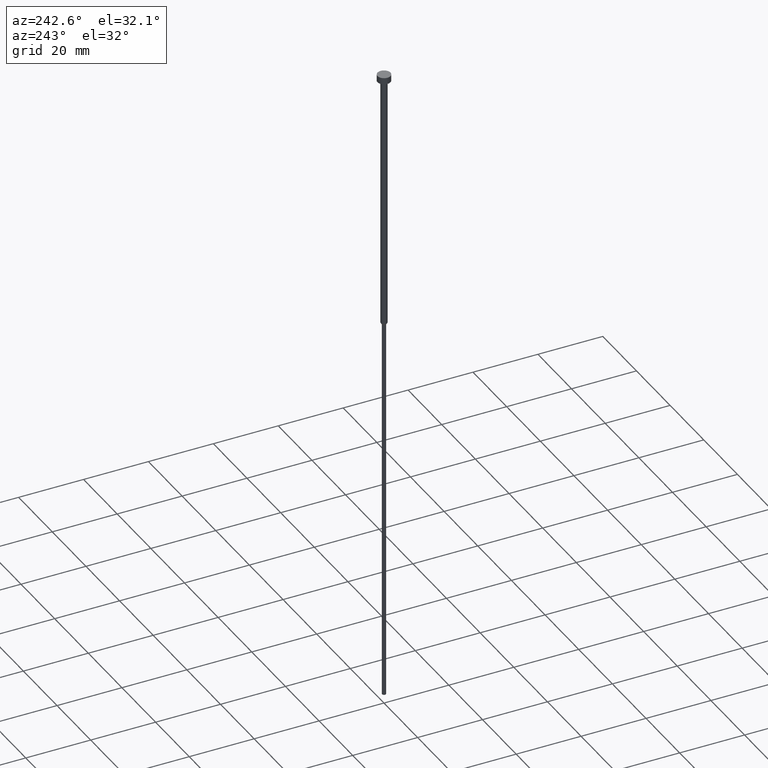
[diagram: clean part render]
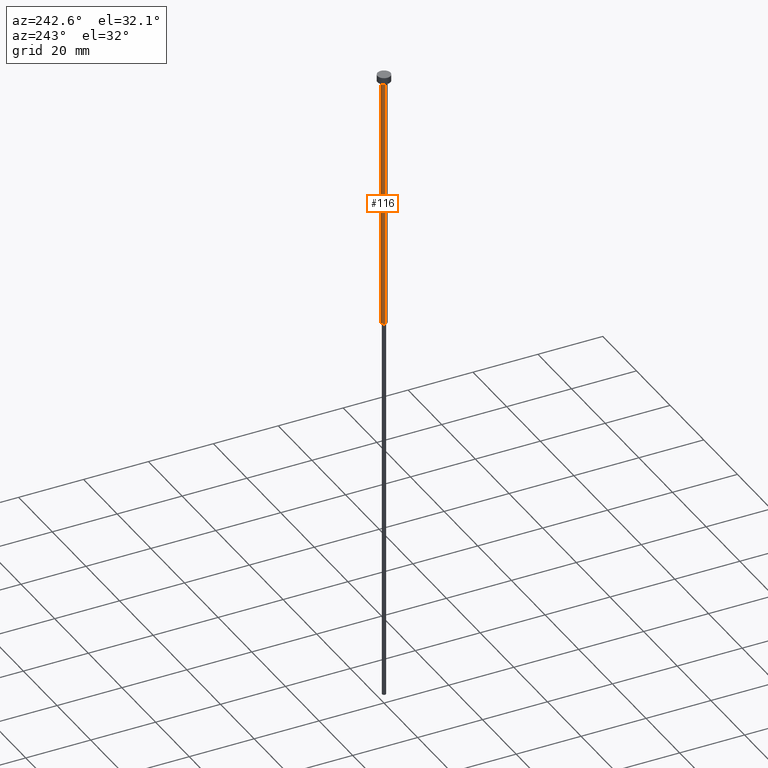
[diagram: same view with one face highlighted and labeled with its STEP entity id]
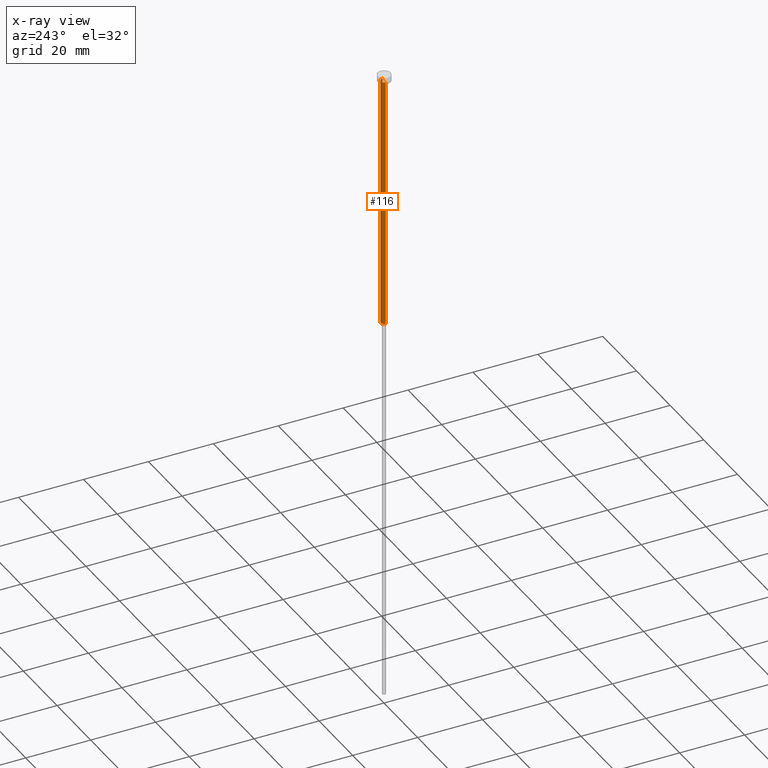
[diagram: x-ray of the same camera — body ghosted, the highlighted face saturated]
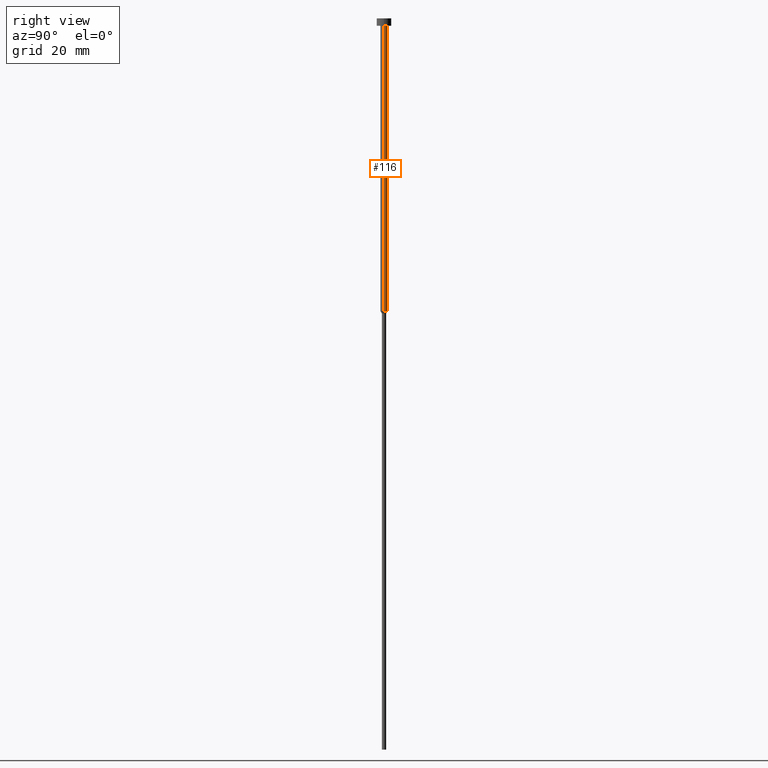
[diagram: same view with one face highlighted and labeled with its STEP entity id]
A machine part, auxiliary view. The second image highlights one B-rep face of the part: STEP entity #116.
The next image is the same camera in x-ray: the body ghosted, the highlighted face saturated — about 0% of this face is hidden behind the body in this view.
A second angle (right view) of the same face is appended — the face is thin or edge-on in the first view.
In plain terms, the highlighted cylindrical surface (edge-blend (fillet) strip) has radius 1 mm, axis along (-0, -0, 1).
Its self-contained STEP definition (entity closure, byte-faithful):
#8 = ORIENTED_EDGE ( 'NONE', *, *, #251, .T. ) ;
#20 = CARTESIAN_POINT ( 'NONE',  ( 1.000000000000003109, 0.000000000000000000, -80.00000000000000000 ) ) ;
#22 = DIRECTION ( 'NONE',  ( -0.000000000000000000, -0.000000000000000000, 1.000000000000000000 ) ) ;
#43 = VERTEX_POINT ( 'NONE', #134 ) ;
#51 = CARTESIAN_POINT ( 'NONE',  ( 0.000000000000000000, 0.000000000000000000, 0.000000000000000000 ) ) ;
#61 = DIRECTION ( 'NONE',  ( 1.000000000000000000, 0.000000000000000000, 0.000000000000000000 ) ) ;
#72 = DIRECTION ( 'NONE',  ( 1.000000000000000000, 0.000000000000000000, 0.000000000000000000 ) ) ;
#76 = CARTESIAN_POINT ( 'NONE',  ( 0.000000000000000000, 0.000000000000000000, -2.000000000000000444 ) ) ;
#77 = EDGE_CURVE ( 'NONE', #205, #315, #166, .T. ) ;
#105 = CARTESIAN_POINT ( 'NONE',  ( 1.000000000000003331, 0.000000000000000000, 0.000000000000000000 ) ) ;
#116 = ADVANCED_FACE ( 'NONE', ( #297 ), #237, .T. ) ;
#126 = CIRCLE ( 'NONE', #302, 1.000000000000003109 ) ;
#128 = ORIENTED_EDGE ( 'NONE', *, *, #156, .T. ) ;
#134 = CARTESIAN_POINT ( 'NONE',  ( -1.000000000000003553, 1.224646799147357398E-16, -2.000000000000000444 ) ) ;
#144 = CARTESIAN_POINT ( 'NONE',  ( 1.000000000000003553, 0.000000000000000000, -2.000000000000000444 ) ) ;
#153 = EDGE_CURVE ( 'NONE', #315, #43, #247, .T. ) ;
#156 = EDGE_CURVE ( 'NONE', #318, #43, #190, .T. ) ;
#160 = DIRECTION ( 'NONE',  ( -0.000000000000000000, -0.000000000000000000, 1.000000000000000000 ) ) ;
#163 = CARTESIAN_POINT ( 'NONE',  ( -1.000000000000003331, 1.224646799147357151E-16, 0.000000000000000000 ) ) ;
#166 = LINE ( 'NONE', #105, #279 ) ;
#175 = ORIENTED_EDGE ( 'NONE', *, *, #77, .F. ) ;
#190 = LINE ( 'NONE', #163, #202 ) ;
#202 = VECTOR ( 'NONE', #291, 1000.000000000000000 ) ;
#205 = VERTEX_POINT ( 'NONE', #20 ) ;
#210 = AXIS2_PLACEMENT_3D ( 'NONE', #76, #22, #239 ) ;
#220 = CARTESIAN_POINT ( 'NONE',  ( 0.000000000000000000, 0.000000000000000000, -80.00000000000000000 ) ) ;
#223 = EDGE_LOOP ( 'NONE', ( #8, #128, #306, #175 ) ) ;
#237 = CYLINDRICAL_SURFACE ( 'NONE', #267, 1.000000000000003331 ) ;
#239 = DIRECTION ( 'NONE',  ( 1.000000000000000000, 0.000000000000000000, 0.000000000000000000 ) ) ;
#244 = DIRECTION ( 'NONE',  ( -0.000000000000000000, -0.000000000000000000, 1.000000000000000000 ) ) ;
#247 = CIRCLE ( 'NONE', #210, 1.000000000000003553 ) ;
#251 = EDGE_CURVE ( 'NONE', #205, #318, #126, .T. ) ;
#255 = CARTESIAN_POINT ( 'NONE',  ( -1.000000000000003109, 1.224646799147356905E-16, -80.00000000000000000 ) ) ;
#267 = AXIS2_PLACEMENT_3D ( 'NONE', #51, #160, #72 ) ;
#279 = VECTOR ( 'NONE', #244, 1000.000000000000000 ) ;
#291 = DIRECTION ( 'NONE',  ( -0.000000000000000000, -0.000000000000000000, 1.000000000000000000 ) ) ;
#297 = FACE_OUTER_BOUND ( 'NONE', #223, .T. ) ;
#302 = AXIS2_PLACEMENT_3D ( 'NONE', #220, #326, #61 ) ;
#306 = ORIENTED_EDGE ( 'NONE', *, *, #153, .F. ) ;
#315 = VERTEX_POINT ( 'NONE', #144 ) ;
#318 = VERTEX_POINT ( 'NONE', #255 ) ;
#326 = DIRECTION ( 'NONE',  ( -0.000000000000000000, -0.000000000000000000, 1.000000000000000000 ) ) ;